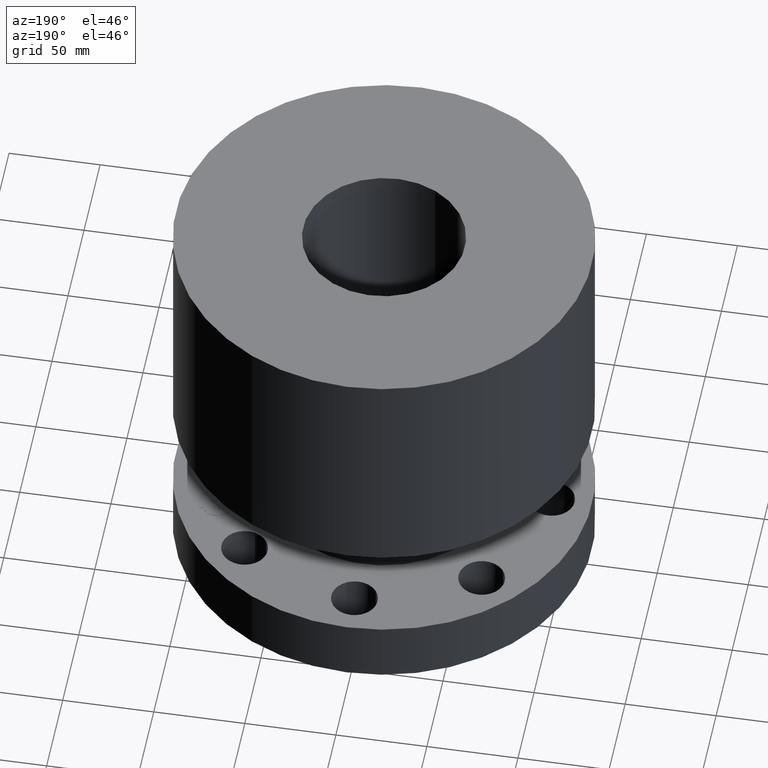
[diagram: clean part render]
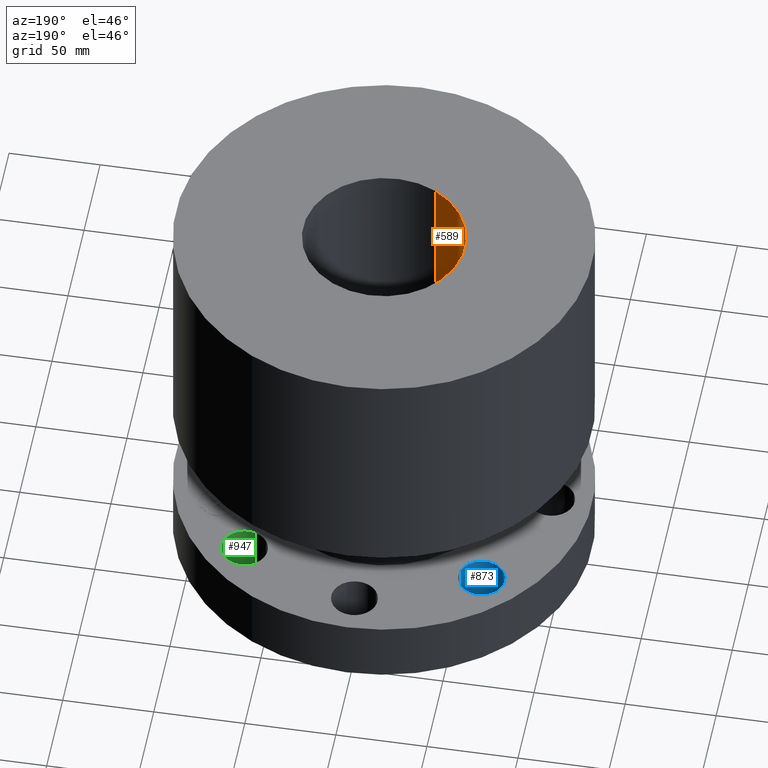
[diagram: same view with three faces highlighted in distinct colors, each labeled with its STEP entity id]
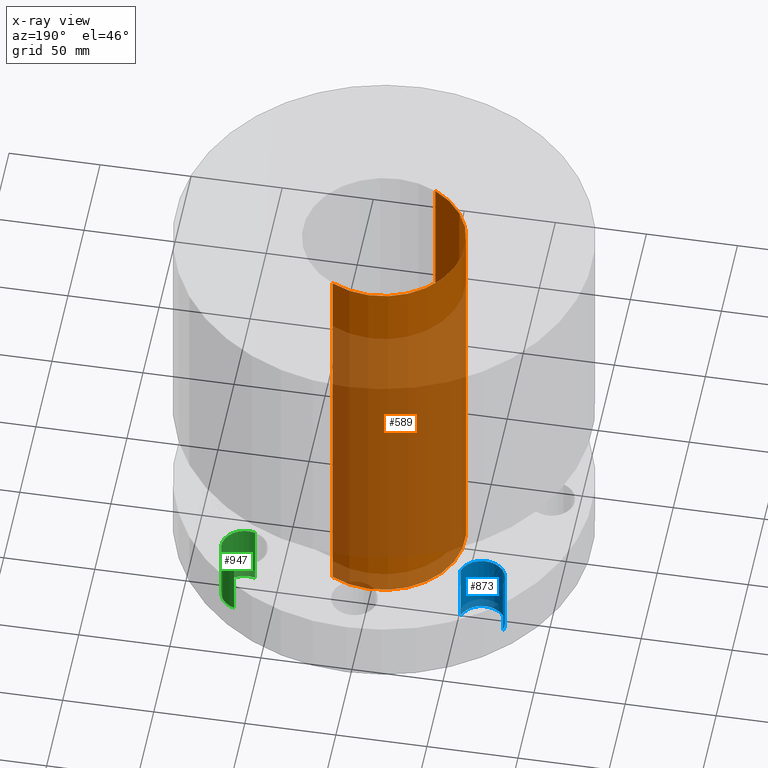
[diagram: x-ray of the same camera — body ghosted, the three highlighted faces saturated]
A machine part, auxiliary view with three faces highlighted in distinct colors.
The next image is the same camera in x-ray (body ghosted, the three faces saturated) — at least one of them is partly hidden behind the body in this view.
Their STEP definitions:

[orange] entity #589 — the highlighted cylindrical surface (partial cylindrical patch) has radius 44.45 mm, axis along (0, 0, -1).
#530=AXIS2_PLACEMENT_3D('Circle Axis2P3D',#528,#529,$) ;
#550=AXIS2_PLACEMENT_3D('Cylinder Axis2P3D',#547,#548,#549) ;
#580=AXIS2_PLACEMENT_3D('Circle Axis2P3D',#578,#579,$) ;
#528=CARTESIAN_POINT('Axis2P3D Location',(0.,0.,8.75000000003)) ;
#532=CARTESIAN_POINT('Vertex',(-0.838994692561,-1.53576948331,8.75000000003)) ;
#534=CARTESIAN_POINT('Vertex',(0.838994692561,1.53576948331,8.75000000003)) ;
#547=CARTESIAN_POINT('Axis2P3D Location',(0.,0.,4.25000000002)) ;
#552=CARTESIAN_POINT('Line Origine',(0.838994692561,1.53576948331,4.25000000002)) ;
#556=CARTESIAN_POINT('Vertex',(0.838994692561,1.53576948331,-0.250000000001)) ;
#563=CARTESIAN_POINT('Vertex',(-0.838994692561,-1.53576948331,-0.250000000001)) ;
#566=CARTESIAN_POINT('Line Origine',(-0.838994692561,-1.53576948331,4.25000000002)) ;
#578=CARTESIAN_POINT('Axis2P3D Location',(0.,0.,-0.250000000001)) ;
#529=DIRECTION('Axis2P3D Direction',(0.,0.,-0.0393700787402)) ;
#548=DIRECTION('Axis2P3D Direction',(0.,0.,-0.0393700787402)) ;
#549=DIRECTION('Axis2P3D XDirection',(-0.0188750212049,-0.0345504945626,0.)) ;
#553=DIRECTION('Vector Direction',(0.,0.,-0.0393700787402)) ;
#567=DIRECTION('Vector Direction',(0.,0.,-0.0393700787402)) ;
#579=DIRECTION('Axis2P3D Direction',(0.,0.,-0.0393700787402)) ;
#554=VECTOR('Line Direction',#553,0.0393700787402) ;
#568=VECTOR('Line Direction',#567,0.0393700787402) ;
#584=ORIENTED_EDGE('',*,*,#536,.F.) ;
#585=ORIENTED_EDGE('',*,*,#570,.T.) ;
#586=ORIENTED_EDGE('',*,*,#582,.T.) ;
#587=ORIENTED_EDGE('',*,*,#558,.F.) ;
#589=ADVANCED_FACE('PartBody',(#588),#551,.F.) ;
#531=CIRCLE('generated circle',#530,1.75000000001) ;
#581=CIRCLE('generated circle',#580,1.75000000001) ;
#551=CYLINDRICAL_SURFACE('generated cylinder',#550,1.75000000001) ;
#536=EDGE_CURVE('',#533,#535,#531,.T.) ;
#558=EDGE_CURVE('',#535,#557,#555,.T.) ;
#570=EDGE_CURVE('',#533,#564,#569,.T.) ;
#582=EDGE_CURVE('',#564,#557,#581,.T.) ;
#583=EDGE_LOOP('',(#584,#585,#586,#587)) ;
#588=FACE_OUTER_BOUND('',#583,.T.) ;
#555=LINE('Line',#552,#554) ;
#569=LINE('Line',#566,#568) ;
#533=VERTEX_POINT('',#532) ;
#535=VERTEX_POINT('',#534) ;
#557=VERTEX_POINT('',#556) ;
#564=VERTEX_POINT('',#563) ;

[blue] entity #873 — the highlighted cylindrical surface (edge-blend (fillet) strip) has radius 12.7 mm, axis along (0, 0, 1).
#208=AXIS2_PLACEMENT_3D('Circle Axis2P3D',#206,#207,$) ;
#834=AXIS2_PLACEMENT_3D('Cylinder Axis2P3D',#831,#832,#833) ;
#864=AXIS2_PLACEMENT_3D('Circle Axis2P3D',#862,#863,$) ;
#201=CARTESIAN_POINT('Vertex',(-3.04303689681,2.70403184738,0.)) ;
#203=CARTESIAN_POINT('Vertex',(-2.08348726682,2.42249231624,0.)) ;
#206=CARTESIAN_POINT('Axis2P3D Location',(-2.56326208181,2.56326208181,0.)) ;
#831=CARTESIAN_POINT('Axis2P3D Location',(-2.56326208181,2.56326208181,0.00393700787402)) ;
#836=CARTESIAN_POINT('Line Origine',(-3.04303689681,2.70403184738,0.690000000003)) ;
#840=CARTESIAN_POINT('Vertex',(-3.04303689681,2.70403184738,1.38000000001)) ;
#843=CARTESIAN_POINT('Line Origine',(-2.08348726682,2.42249231624,0.690000000003)) ;
#847=CARTESIAN_POINT('Vertex',(-2.08348726682,2.42249231624,1.38000000001)) ;
#862=CARTESIAN_POINT('Axis2P3D Location',(-2.56326208181,2.56326208181,1.38000000001)) ;
#207=DIRECTION('Axis2P3D Direction',(0.,0.,-0.0393700787402)) ;
#832=DIRECTION('Axis2P3D Direction',(0.,0.,0.0393700787402)) ;
#833=DIRECTION('Axis2P3D XDirection',(-0.0377775444876,0.0110842335096,0.)) ;
#837=DIRECTION('Vector Direction',(0.,0.,0.0393700787402)) ;
#844=DIRECTION('Vector Direction',(0.,0.,0.0393700787402)) ;
#863=DIRECTION('Axis2P3D Direction',(0.,0.,0.0393700787402)) ;
#838=VECTOR('Line Direction',#837,0.0393700787402) ;
#845=VECTOR('Line Direction',#844,0.0393700787402) ;
#868=ORIENTED_EDGE('',*,*,#849,.T.) ;
#869=ORIENTED_EDGE('',*,*,#210,.T.) ;
#870=ORIENTED_EDGE('',*,*,#842,.F.) ;
#871=ORIENTED_EDGE('',*,*,#866,.F.) ;
#873=ADVANCED_FACE('PartBody',(#872),#835,.F.) ;
#209=CIRCLE('generated circle',#208,0.500000000002) ;
#865=CIRCLE('generated circle',#864,0.500000000002) ;
#835=CYLINDRICAL_SURFACE('generated cylinder',#834,0.500000000002) ;
#210=EDGE_CURVE('',#204,#202,#209,.T.) ;
#842=EDGE_CURVE('',#841,#202,#839,.F.) ;
#849=EDGE_CURVE('',#848,#204,#846,.F.) ;
#866=EDGE_CURVE('',#848,#841,#865,.F.) ;
#867=EDGE_LOOP('',(#868,#869,#870,#871)) ;
#872=FACE_OUTER_BOUND('',#867,.T.) ;
#839=LINE('Line',#836,#838) ;
#846=LINE('Line',#843,#845) ;
#202=VERTEX_POINT('',#201) ;
#204=VERTEX_POINT('',#203) ;
#841=VERTEX_POINT('',#840) ;
#848=VERTEX_POINT('',#847) ;

[green] entity #947 — the highlighted cylindrical surface (edge-blend (fillet) strip) has radius 12.7 mm, axis along (0, -0, 1).
#235=AXIS2_PLACEMENT_3D('Circle Axis2P3D',#233,#234,$) ;
#920=AXIS2_PLACEMENT_3D('Cylinder Axis2P3D',#917,#918,#919) ;
#938=AXIS2_PLACEMENT_3D('Circle Axis2P3D',#936,#937,$) ;
#233=CARTESIAN_POINT('Axis2P3D Location',(2.56326208181,2.56326208181,0.)) ;
#237=CARTESIAN_POINT('Vertex',(2.70403184738,3.04303689681,0.)) ;
#239=CARTESIAN_POINT('Vertex',(2.42249231624,2.08348726682,0.)) ;
#917=CARTESIAN_POINT('Axis2P3D Location',(2.56326208181,2.56326208181,0.00393700787402)) ;
#922=CARTESIAN_POINT('Line Origine',(2.70403184738,3.04303689681,0.690000000003)) ;
#926=CARTESIAN_POINT('Vertex',(2.70403184738,3.04303689681,1.38000000001)) ;
#929=CARTESIAN_POINT('Line Origine',(2.42249231624,2.08348726682,0.690000000003)) ;
#933=CARTESIAN_POINT('Vertex',(2.42249231624,2.08348726682,1.38000000001)) ;
#936=CARTESIAN_POINT('Axis2P3D Location',(2.56326208181,2.56326208181,1.38000000001)) ;
#234=DIRECTION('Axis2P3D Direction',(0.,0.,-0.0393700787402)) ;
#918=DIRECTION('Axis2P3D Direction',(0.,-0.,0.0393700787402)) ;
#919=DIRECTION('Axis2P3D XDirection',(0.0110842335096,0.0377775444876,0.)) ;
#923=DIRECTION('Vector Direction',(0.,0.,0.0393700787402)) ;
#930=DIRECTION('Vector Direction',(0.,0.,0.0393700787402)) ;
#937=DIRECTION('Axis2P3D Direction',(0.,-0.,0.0393700787402)) ;
#924=VECTOR('Line Direction',#923,0.0393700787402) ;
#931=VECTOR('Line Direction',#930,0.0393700787402) ;
#942=ORIENTED_EDGE('',*,*,#928,.T.) ;
#943=ORIENTED_EDGE('',*,*,#241,.T.) ;
#944=ORIENTED_EDGE('',*,*,#935,.F.) ;
#945=ORIENTED_EDGE('',*,*,#940,.F.) ;
#947=ADVANCED_FACE('PartBody',(#946),#921,.F.) ;
#236=CIRCLE('generated circle',#235,0.500000000002) ;
#939=CIRCLE('generated circle',#938,0.500000000002) ;
#921=CYLINDRICAL_SURFACE('generated cylinder',#920,0.500000000002) ;
#241=EDGE_CURVE('',#238,#240,#236,.T.) ;
#928=EDGE_CURVE('',#927,#238,#925,.F.) ;
#935=EDGE_CURVE('',#934,#240,#932,.F.) ;
#940=EDGE_CURVE('',#927,#934,#939,.F.) ;
#941=EDGE_LOOP('',(#942,#943,#944,#945)) ;
#946=FACE_OUTER_BOUND('',#941,.T.) ;
#925=LINE('Line',#922,#924) ;
#932=LINE('Line',#929,#931) ;
#238=VERTEX_POINT('',#237) ;
#240=VERTEX_POINT('',#239) ;
#927=VERTEX_POINT('',#926) ;
#934=VERTEX_POINT('',#933) ;